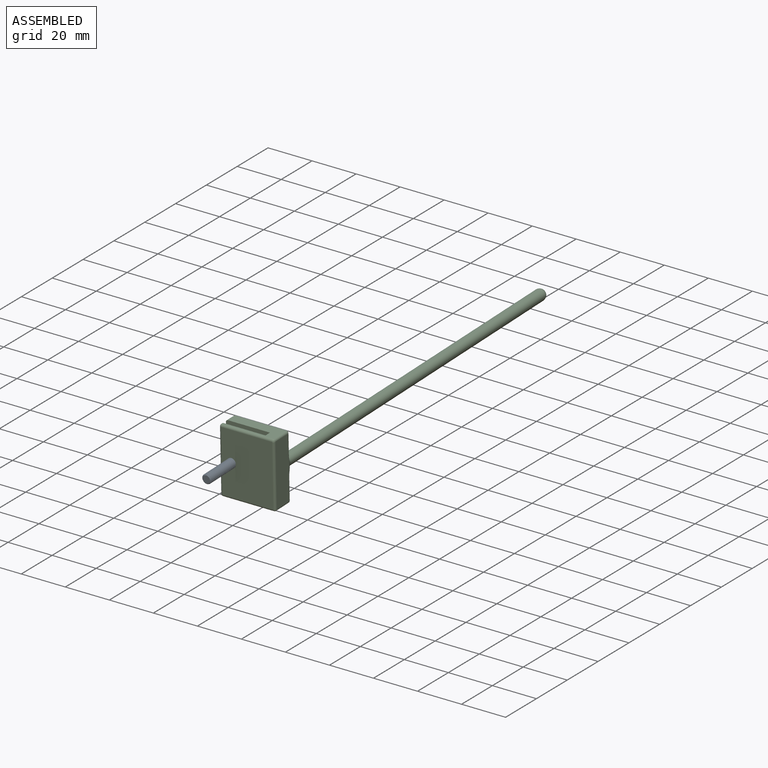
[diagram: assembled view]
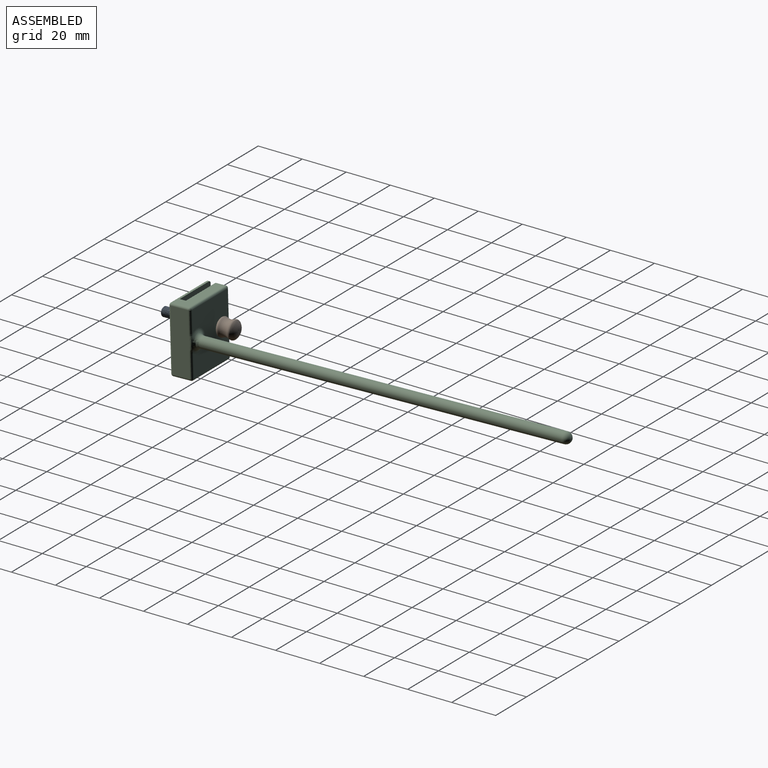
[diagram: assembled view, second angle]
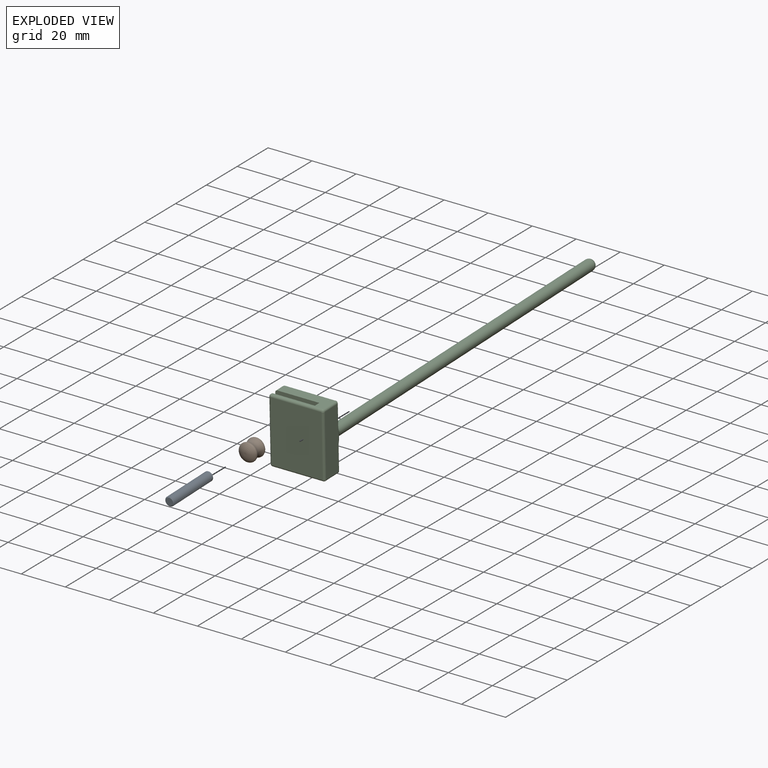
[diagram: exploded view]
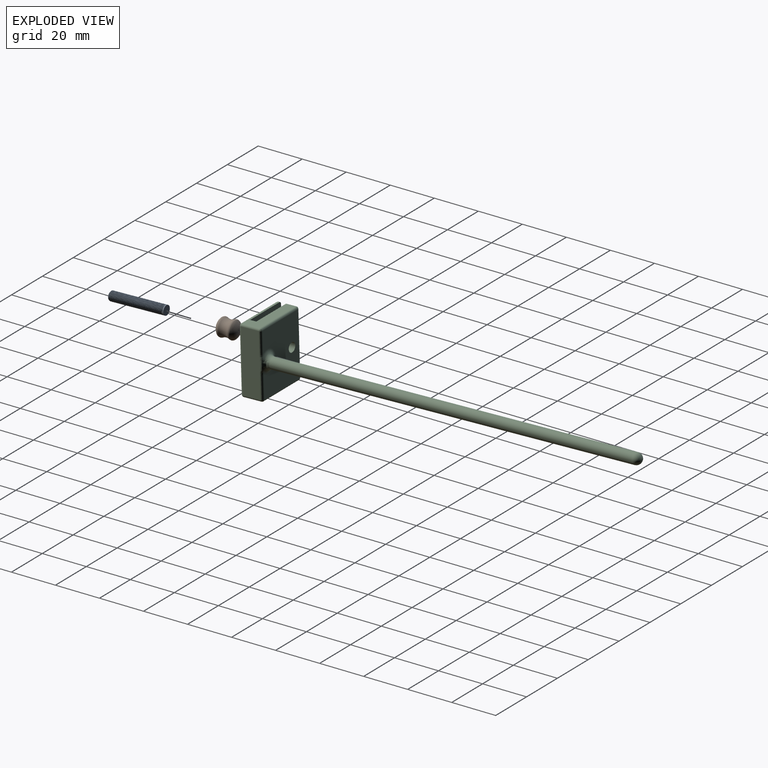
[diagram: exploded view, second angle]
ASSEMBLY  parts=3 mates=2
PART A: 55 faces, bbox 4.2x4.8x25.5 mm
  f0: plane 3.4x3.4mm, normal (0,0,-1), area 9.1mm2, adj f54
  f1: cylinder r=2.1mm len=4.2mm, axis (0,0,-1), area 9.2mm2, adj f2,f50,f51,f52,f53
  f2: cylinder r=2.1mm len=4.2mm, axis (0,0,-1), area 1.3mm2, adj f1,f3,f52,f53
  f3: cylinder r=2.1mm len=4.2mm, axis (0,0,-1), area 1.3mm2, adj f2,f4,f52,f53
  f4: cylinder r=2.1mm len=4.2mm, axis (0,0,-1), area 1.3mm2, adj f3,f5,f52,f53
  f5: cylinder r=2.1mm len=4.2mm, axis (0,0,-1), area 1.3mm2, adj f4,f6,f52,f53
  f6: cylinder r=2.1mm len=4.2mm, axis (0,0,-1), area 1.3mm2, adj f5,f7,f52,f53
  f7: cylinder r=2.1mm len=4.2mm, axis (0,0,-1), area 1.3mm2, adj f6,f8,f52,f53
  f8: cylinder r=2.1mm len=4.2mm, axis (0,0,-1), area 1.3mm2, adj f7,f9,f52,f53
  f9: cylinder r=2.1mm len=4.2mm, axis (0,0,-1), area 1.3mm2, adj f8,f10,f52,f53
  f10: cylinder r=2.1mm len=4.2mm, axis (0,0,-1), area 1.3mm2, adj f9,f11,f52,f53
  f11: cylinder r=2.1mm len=4.2mm, axis (0,0,-1), area 1.3mm2, adj f10,f12,f52,f53
  f12: cylinder r=2.1mm len=4.2mm, axis (0,0,-1), area 1.3mm2, adj f11,f13,f52,f53
  f13: cylinder r=2.1mm len=4.2mm, axis (0,0,-1), area 1.3mm2, adj f12,f14,f52,f53
  f14: cylinder r=2.1mm len=4.2mm, axis (0,0,-1), area 1.3mm2, adj f13,f15,f52,f53
  f15: cylinder r=2.1mm len=4.2mm, axis (0,0,-1), area 1.3mm2, adj f14,f16,f52,f53
  f16: cylinder r=2.1mm len=4.2mm, axis (0,0,-1), area 1.3mm2, adj f15,f17,f52,f53
  f17: cylinder r=2.1mm len=4.2mm, axis (0,0,-1), area 1.3mm2, adj f16,f18,f52,f53
  f18: cylinder r=2.1mm len=4.2mm, axis (0,0,-1), area 1.3mm2, adj f17,f19,f52,f53
  f19: cylinder r=2.1mm len=4.2mm, axis (0,0,-1), area 1.3mm2, adj f18,f20,f52,f53
  f20: cylinder r=2.1mm len=4.2mm, axis (0,0,-1), area 1.3mm2, adj f19,f21,f52,f53
  f21: cylinder r=2.1mm len=4.2mm, axis (0,0,-1), area 1.3mm2, adj f20,f22,f52,f53
  f22: cylinder r=2.1mm len=4.2mm, axis (0,0,-1), area 1.3mm2, adj f21,f23,f52,f53
  f23: cylinder r=2.1mm len=4.2mm, axis (0,0,-1), area 1.3mm2, adj f22,f24,f52,f53
  f24: cylinder r=2.1mm len=4.2mm, axis (0,0,-1), area 1.3mm2, adj f23,f25,f52,f53
  f25: cylinder r=2.1mm len=4.2mm, axis (0,0,-1), area 1.3mm2, adj f24,f26,f52,f53
  f26: cylinder r=2.1mm len=4.2mm, axis (0,0,-1), area 1.3mm2, adj f25,f27,f52,f53
  f27: cylinder r=2.1mm len=4.2mm, axis (0,0,-1), area 1.3mm2, adj f26,f28,f52,f53
  f28: cylinder r=2.1mm len=4.2mm, axis (0,0,-1), area 1.3mm2, adj f27,f29,f52,f53
  f29: cylinder r=2.1mm len=4.2mm, axis (0,0,-1), area 1.3mm2, adj f28,f30,f52,f53
  f30: cylinder r=2.1mm len=4.2mm, axis (0,0,-1), area 1.3mm2, adj f29,f31,f52,f53
  f31: cylinder r=2.1mm len=4.2mm, axis (0,0,-1), area 1.3mm2, adj f30,f32,f52,f53
  f32: cylinder r=2.1mm len=4.2mm, axis (0,0,-1), area 1.3mm2, adj f31,f33,f52,f53
  f33: cylinder r=2.1mm len=4.2mm, axis (0,0,-1), area 1.3mm2, adj f32,f34,f52,f53
  f34: cylinder r=2.1mm len=4.2mm, axis (0,0,-1), area 1.3mm2, adj f33,f35,f52,f53
  f35: cylinder r=2.1mm len=4.2mm, axis (0,0,-1), area 1.3mm2, adj f34,f36,f52,f53
  f36: cylinder r=2.1mm len=4.2mm, axis (0,0,-1), area 1.3mm2, adj f35,f37,f52,f53
  f37: cylinder r=2.1mm len=4.2mm, axis (0,0,-1), area 1.3mm2, adj f36,f38,f52,f53
  f38: cylinder r=2.1mm len=4.2mm, axis (0,0,-1), area 1.3mm2, adj f37,f39,f52,f53
  f39: cylinder r=2.1mm len=4.2mm, axis (0,0,-1), area 1.3mm2, adj f38,f40,f52,f53
  f40: cylinder r=2.1mm len=4.2mm, axis (0,0,-1), area 1.3mm2, adj f39,f41,f52,f53
  f41: cylinder r=2.1mm len=4.2mm, axis (0,0,-1), area 1.3mm2, adj f40,f42,f52,f53
  f42: cylinder r=2.1mm len=4.2mm, axis (0,0,-1), area 1.3mm2, adj f41,f43,f52,f53
  f43: cylinder r=2.1mm len=4.2mm, axis (0,0,-1), area 1.3mm2, adj f42,f44,f52,f53
  f44: cylinder r=2.1mm len=4.2mm, axis (0,0,-1), area 1.3mm2, adj f43,f45,f52,f53
  f45: cylinder r=2.1mm len=4.2mm, axis (0,0,-1), area 1.3mm2, adj f44,f46,f52,f53
  f46: cylinder r=2.1mm len=4.2mm, axis (0,0,-1), area 1.3mm2, adj f45,f47,f52,f53
  f47: cylinder r=2.1mm len=4.2mm, axis (0,0,-1), area 1.3mm2, adj f46,f48,f52,f53
  f48: cylinder r=2.1mm len=4.2mm, axis (0,0,-1), area 1.3mm2, adj f47,f49,f52,f53
  f49: cylinder r=2.1mm len=4.2mm, axis (0,0,-1), area 1.1mm2, adj f48,f52,f53,f54
  f50: plane 4.2x4.2mm, normal (0,0,1), area 13.9mm2, adj f1
  f51: plane 0.4x0.33mm, normal (0,-1,0), area 0.1mm2, adj f1,f52,f53
  f52: bspline ~25x4.85mm, area 250.2mm2, adj f1,f2,f3,f4,f5,f6,f7,f8
  f53: bspline ~24.9x4.85mm, area 216.5mm2, adj f1,f2,f3,f4,f5,f6,f7,f8
  f54: cone r=1.7mm half-angle=45deg, axis (0,0,1), area 4.4mm2, adj f0,f49,f52,f53
PART B: 5 faces, bbox 10.3x10.3x9.2 mm
  f0: torus R=0.43mm, axis (0,0,-1), area 52.8mm2, adj f3
  f1: torus R=7.87mm, axis (0,0,-1), area 95.5mm2, adj f3,f4
  f2: torus R=0.43mm, axis (0,0,-1), area 52.8mm2, adj f4
  f3: torus R=3.08mm, axis (0,0,1), area 31.3mm2, adj f0,f1
  f4: torus R=3.08mm, axis (0,0,1), area 31.3mm2, adj f1,f2
PART C: 41 faces, bbox 26.8x180x30 mm
  f0: plane 28x0.65mm, normal (-1,0,0), area 18.2mm2, adj f2,f3,f15,f36
  f1: plane 23x8mm, normal (0,0,-1), area 130.2mm2, adj f2,f9,f10,f15,f16,f17,f22,f33
  f2: cylinder r=1mm len=1mm, axis (0,-1,0), area 1mm2, adj f0,f1,f15,f34
  f3: cylinder r=1mm len=1mm, axis (0,1,0), area 1mm2, adj f0,f8,f15,f38
  f4: plane 28x4.52mm, normal (-1,0,0), area 126.6mm2, adj f10,f12,f17,f26
  f5: plane 28x23mm, normal (0,-1,0), area 644mm2, adj f33,f36,f37,f40
  f6: plane 28x8.44mm, normal (1,0,0), area 226.1mm2, adj f9,f11,f23,f25,f27,f29,f31,f37
  f7: plane 28x23mm, normal (0,1,0), area 563.4mm2, adj f18,f19,f22,f23,f26,f30,f31
  f8: plane 23x8mm, normal (0,0,1), area 130.2mm2, adj f3,f11,f12,f15,f16,f17,f30,f40
  f9: cylinder r=1mm len=8mm, axis (0,1,0), area 12.6mm2, adj f1,f6,f21,f35
  f10: cylinder r=1mm len=4.52mm, axis (0,-1,0), area 7.1mm2, adj f1,f4,f17,f24
  f11: cylinder r=1mm len=8mm, axis (0,-1,0), area 12.6mm2, adj f6,f8,f32,f39
  f12: cylinder r=1mm len=4.52mm, axis (0,1,0), area 7.1mm2, adj f4,f8,f17,f28
  f13: cylinder r=2.5mm len=165mm, axis (0,-1,0), area 2591.8mm2, adj f14,f19,f20
  f14: sphere r=2.5mm, area 39.3mm2, adj f13
  f15: plane 30x20mm, normal (0,1,0), area 599.6mm2, adj f0,f1,f2,f3,f8,f16
  f16: plane 30x2.83mm, normal (-1,0,0), area 84.9mm2, adj f1,f8,f15,f17
  f17: plane 30x20mm, normal (0,-1,0), area 585.7mm2, adj f1,f4,f8,f10,f12,f16,f18
  f18: cylinder r=2.1mm len=5.52mm, axis (0,1,0), area 72.8mm2, adj f7,f17
  f19: torus R=5mm, axis (0,1,0), area 64.9mm2, adj f7,f13,f20,f25,f29
  f20: bspline ~7.02x2.86mm, area 9.3mm2, adj f13,f19,f27
  f21: sphere r=1mm, area 2.1mm2, adj f9,f22,f23
  f22: cylinder r=1mm len=23mm, axis (-1,0,0), area 36.1mm2, adj f1,f7,f21,f24
  f23: cylinder r=1mm len=10.28mm, axis (0,0,1), area 16.1mm2, adj f6,f7,f21,f25
  f24: sphere r=1mm, area 1.6mm2, adj f10,f22,f26
  f25: bspline ~3.65x1.33mm, area 2.3mm2, adj f6,f19,f23,f27
  f26: cylinder r=1mm len=28mm, axis (0,0,-1), area 44mm2, adj f4,f7,f24,f28
  f27: bspline ~5.32x1.02mm, area 5.1mm2, adj f6,f20,f25,f29
  f28: sphere r=1mm, area 1.6mm2, adj f12,f26,f30
  f29: bspline ~3.66x1.33mm, area 2.3mm2, adj f6,f19,f27,f31
  f30: cylinder r=1mm len=23mm, axis (1,0,0), area 36.1mm2, adj f7,f8,f28,f32
  f31: cylinder r=1mm len=9.6mm, axis (0,0,1), area 15.1mm2, adj f6,f7,f29,f32
  f32: sphere r=1mm, area 1mm2, adj f11,f30,f31
  f33: cylinder r=1mm len=23mm, axis (1,0,0), area 36.1mm2, adj f1,f5,f34,f35
  f34: sphere r=1mm, area 1.6mm2, adj f2,f33,f36
  f35: sphere r=1mm, area 2.1mm2, adj f9,f33,f37
  f36: cylinder r=1mm len=28mm, axis (0,0,1), area 44mm2, adj f0,f5,f34,f38
  f37: cylinder r=1mm len=28mm, axis (0,0,-1), area 44mm2, adj f5,f6,f35,f39
  f38: sphere r=1mm, area 1.6mm2, adj f3,f36,f40
  f39: sphere r=1mm, area 1mm2, adj f11,f37,f40
  f40: cylinder r=1mm len=23mm, axis (-1,0,0), area 36.1mm2, adj f5,f8,f38,f39
PLACE A rot(axis=(-1,0,0),88.3deg) t=(-9.46,-3.56,33.88)mm
PLACE B rot(axis=(-1,0,0),88.3deg) t=(-9.46,1.6,34.04)mm
PLACE C rot(axis=(1,0,0),1.7deg) t=(-14.86,13.26,19.12)mm
MATE cylindrical B.f0 <-> A.f1  axis (0,-1,-0.03) through (-9.46,21.75,34.64)mm
MATE cylindrical C.f18 <-> A.f1  axis (0,1,0.03) through (-9.46,17.28,34.51)mm
